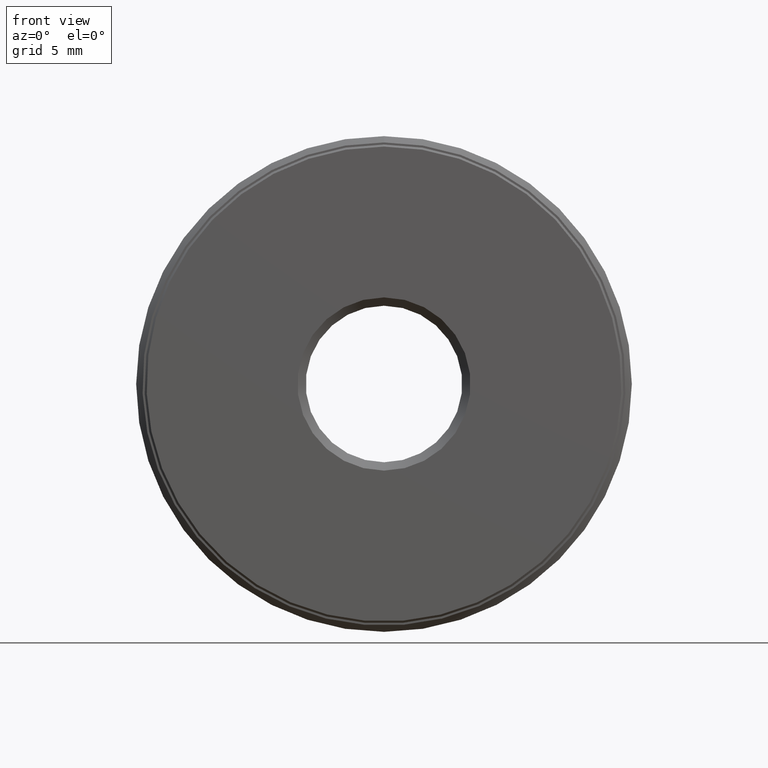
[diagram: clean part render]
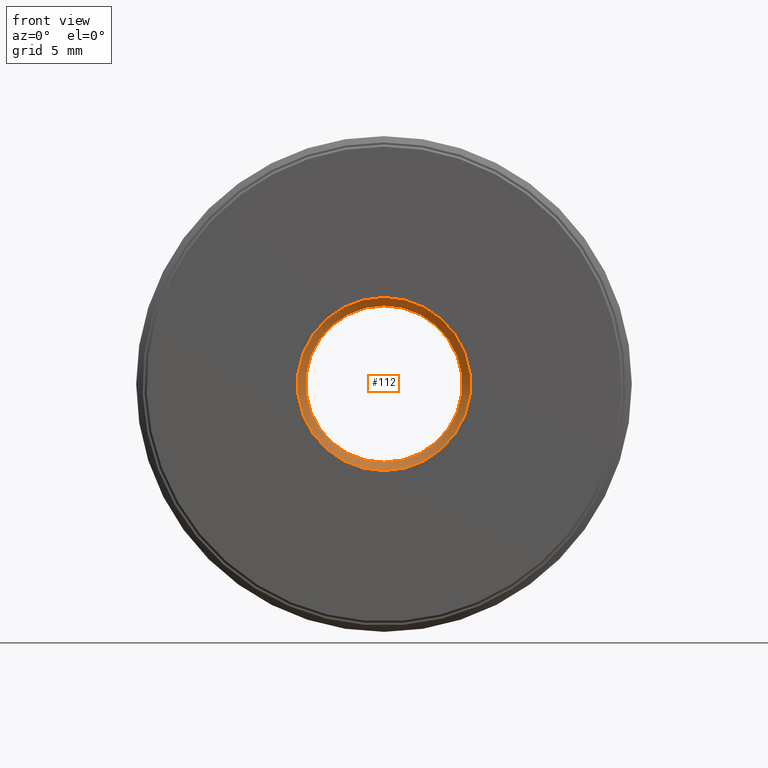
[diagram: same view with one face highlighted and labeled with its STEP entity id]
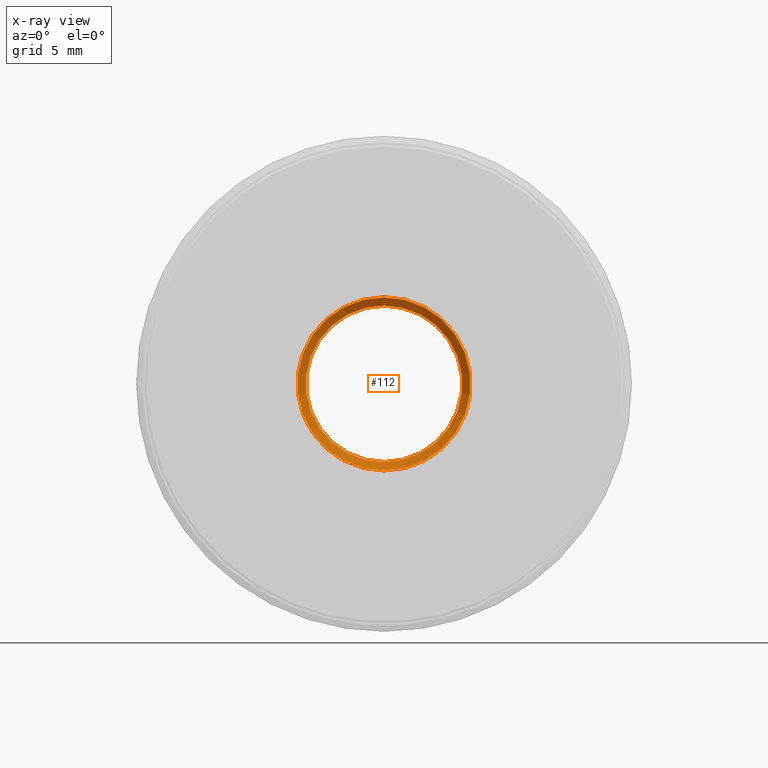
[diagram: x-ray of the same camera — body ghosted, the highlighted face saturated]
A machine part, front view. The second image highlights one B-rep face of the part: STEP entity #112.
The next image is the same camera in x-ray: the body ghosted, the highlighted face saturated — about 0% of this face is hidden behind the body in this view.
In plain terms, the highlighted conical surface has half-angle 45 deg.
Its self-contained STEP definition (entity closure, byte-faithful):
#9 = AXIS2_PLACEMENT_3D ( 'NONE', #597, #99, #372 ) ;
#19 = EDGE_LOOP ( 'NONE', ( #369 ) ) ;
#88 = CIRCLE ( 'NONE', #490, 0.2075000000000000500 ) ;
#99 = DIRECTION ( 'NONE',  ( -0.0000000000000000000, 1.000000000000000000, -0.0000000000000000000 ) ) ;
#112 = ADVANCED_FACE ( 'NONE', ( #124, #381 ), #117, .F. ) ;
#117 = CONICAL_SURFACE ( 'NONE', #403, 0.1875000000000000300, 0.7853981633974487200 ) ;
#119 = VERTEX_POINT ( 'NONE', #564 ) ;
#121 = CARTESIAN_POINT ( 'NONE',  ( 0.0000000000000000000, 0.02000000000000002500, 0.0000000000000000000 ) ) ;
#124 = FACE_OUTER_BOUND ( 'NONE', #281, .T. ) ;
#130 = ORIENTED_EDGE ( 'NONE', *, *, #586, .F. ) ;
#157 = VERTEX_POINT ( 'NONE', #394 ) ;
#161 = DIRECTION ( 'NONE',  ( 0.0000000000000000000, -1.000000000000000000, 0.0000000000000000000 ) ) ;
#218 = CIRCLE ( 'NONE', #9, 0.1875000000000000300 ) ;
#281 = EDGE_LOOP ( 'NONE', ( #130 ) ) ;
#290 = CARTESIAN_POINT ( 'NONE',  ( 0.0000000000000000000, 1.707404996040164500E-017, 0.0000000000000000000 ) ) ;
#369 = ORIENTED_EDGE ( 'NONE', *, *, #448, .T. ) ;
#372 = DIRECTION ( 'NONE',  ( 0.0000000000000000000, 0.0000000000000000000, 1.000000000000000000 ) ) ;
#379 = DIRECTION ( 'NONE',  ( -0.0000000000000000000, 1.000000000000000000, -0.0000000000000000000 ) ) ;
#381 = FACE_BOUND ( 'NONE', #19, .T. ) ;
#382 = DIRECTION ( 'NONE',  ( 0.0000000000000000000, 0.0000000000000000000, 1.000000000000000000 ) ) ;
#393 = DIRECTION ( 'NONE',  ( 0.0000000000000000000, 0.0000000000000000000, -1.000000000000000000 ) ) ;
#394 = CARTESIAN_POINT ( 'NONE',  ( 0.0000000000000000000, 1.707404996040164500E-017, 0.2075000000000000500 ) ) ;
#403 = AXIS2_PLACEMENT_3D ( 'NONE', #121, #161, #393 ) ;
#448 = EDGE_CURVE ( 'NONE', #119, #119, #218, .T. ) ;
#490 = AXIS2_PLACEMENT_3D ( 'NONE', #290, #379, #382 ) ;
#564 = CARTESIAN_POINT ( 'NONE',  ( 0.0000000000000000000, 0.02000000000000002500, 0.1875000000000000300 ) ) ;
#586 = EDGE_CURVE ( 'NONE', #157, #157, #88, .T. ) ;
#597 = CARTESIAN_POINT ( 'NONE',  ( 0.0000000000000000000, 0.02000000000000002500, 0.0000000000000000000 ) ) ;